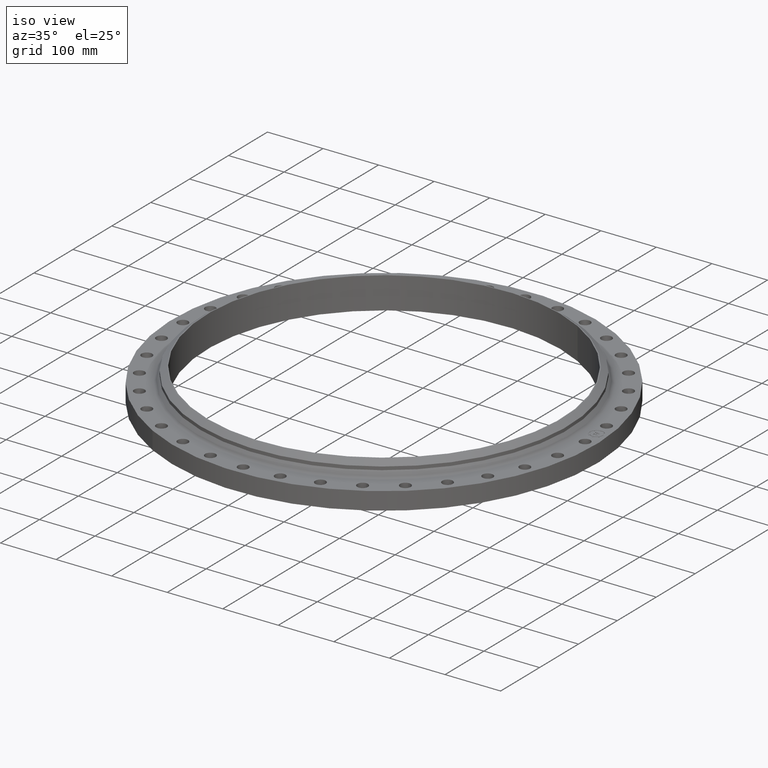
[diagram: clean part render]
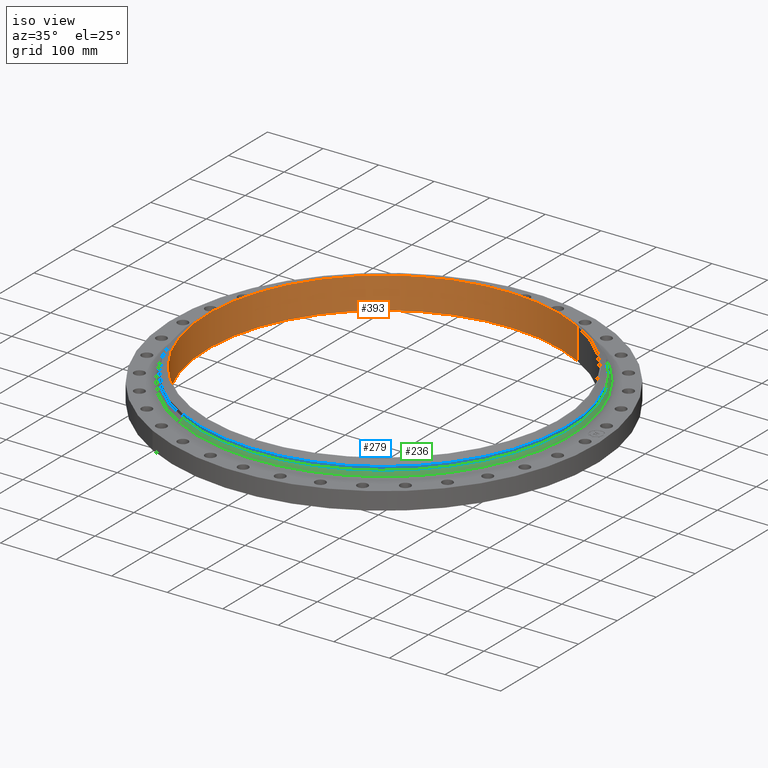
[diagram: same view with three faces highlighted in distinct colors, each labeled with its STEP entity id]
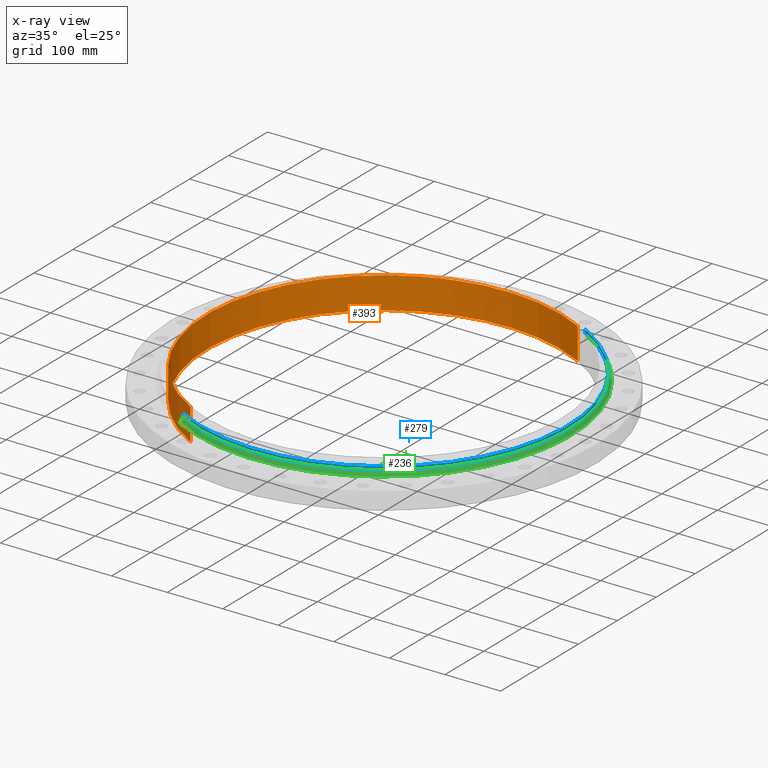
[diagram: x-ray of the same camera — body ghosted, the three highlighted faces saturated]
A machine part, iso view with three faces highlighted in distinct colors.
The next image is the same camera in x-ray (body ghosted, the three faces saturated) — at least one of them is partly hidden behind the body in this view.
Their STEP definitions:

[orange] entity #393 — the highlighted cylindrical surface (partial cylindrical patch) has radius 318.262 mm, axis along (0, 0, -1).
#346=AXIS2_PLACEMENT_3D('Circle Axis2P3D',#344,#345,$) ;
#366=AXIS2_PLACEMENT_3D('Cylinder Axis2P3D',#363,#364,#365) ;
#377=AXIS2_PLACEMENT_3D('Circle Axis2P3D',#375,#376,$) ;
#344=CARTESIAN_POINT('Axis2P3D Location',(-2.23792987641E-015,-5.59482469102E-016,2.25000000001)) ;
#348=CARTESIAN_POINT('Vertex',(-6.00720199873,-10.9961095005,2.25000000001)) ;
#350=CARTESIAN_POINT('Vertex',(6.00720199873,10.9961095005,2.25000000001)) ;
#363=CARTESIAN_POINT('Axis2P3D Location',(0.,0.,1.175)) ;
#368=CARTESIAN_POINT('Line Origine',(-6.00720199873,-10.9961095005,1.125)) ;
#372=CARTESIAN_POINT('Vertex',(-6.00720199873,-10.9961095005,-1.6224991604E-014)) ;
#375=CARTESIAN_POINT('Axis2P3D Location',(0.,0.,-1.6224991604E-014)) ;
#379=CARTESIAN_POINT('Vertex',(6.00720199873,10.9961095005,-1.6224991604E-014)) ;
#382=CARTESIAN_POINT('Line Origine',(6.00720199873,10.9961095005,1.125)) ;
#345=DIRECTION('Axis2P3D Direction',(0.,-0.,-0.0393700787402)) ;
#364=DIRECTION('Axis2P3D Direction',(0.,0.,-0.0393700787402)) ;
#365=DIRECTION('Axis2P3D XDirection',(0.0188750212049,0.0345504945626,0.)) ;
#369=DIRECTION('Vector Direction',(0.,0.,-0.0393700787402)) ;
#376=DIRECTION('Axis2P3D Direction',(0.,0.,-0.0393700787402)) ;
#383=DIRECTION('Vector Direction',(0.,0.,-0.0393700787402)) ;
#370=VECTOR('Line Direction',#369,0.0393700787402) ;
#384=VECTOR('Line Direction',#383,0.0393700787402) ;
#388=ORIENTED_EDGE('',*,*,#374,.T.) ;
#389=ORIENTED_EDGE('',*,*,#381,.T.) ;
#390=ORIENTED_EDGE('',*,*,#386,.F.) ;
#391=ORIENTED_EDGE('',*,*,#352,.F.) ;
#393=ADVANCED_FACE('PartBody',(#392),#367,.F.) ;
#347=CIRCLE('generated circle',#346,12.5300000001) ;
#378=CIRCLE('generated circle',#377,12.5300000001) ;
#367=CYLINDRICAL_SURFACE('generated cylinder',#366,12.5300000001) ;
#352=EDGE_CURVE('',#349,#351,#347,.T.) ;
#374=EDGE_CURVE('',#349,#373,#371,.T.) ;
#381=EDGE_CURVE('',#373,#380,#378,.T.) ;
#386=EDGE_CURVE('',#351,#380,#385,.T.) ;
#387=EDGE_LOOP('',(#388,#389,#390,#391)) ;
#392=FACE_OUTER_BOUND('',#387,.T.) ;
#371=LINE('Line',#368,#370) ;
#385=LINE('Line',#382,#384) ;
#349=VERTEX_POINT('',#348) ;
#351=VERTEX_POINT('',#350) ;
#373=VERTEX_POINT('',#372) ;
#380=VERTEX_POINT('',#379) ;

[blue] entity #279 — the highlighted cylindrical surface (partial cylindrical patch) has radius 330.962 mm, axis along (0, 0, -1).
#220=AXIS2_PLACEMENT_3D('Circle Axis2P3D',#218,#219,$) ;
#252=AXIS2_PLACEMENT_3D('Cylinder Axis2P3D',#249,#250,#251) ;
#270=AXIS2_PLACEMENT_3D('Circle Axis2P3D',#268,#269,$) ;
#215=CARTESIAN_POINT('Vertex',(6.24691476804,11.4349007815,1.67807397033)) ;
#218=CARTESIAN_POINT('Axis2P3D Location',(0.,0.,1.67807397033)) ;
#222=CARTESIAN_POINT('Vertex',(-6.24691476804,-11.4349007815,1.67807397033)) ;
#249=CARTESIAN_POINT('Axis2P3D Location',(0.,0.,1.175)) ;
#254=CARTESIAN_POINT('Line Origine',(-6.24691476804,-11.4349007815,1.79618420655)) ;
#258=CARTESIAN_POINT('Vertex',(-6.24691476804,-11.4349007815,1.91429444277)) ;
#261=CARTESIAN_POINT('Line Origine',(6.24691476804,11.4349007815,1.79618420655)) ;
#265=CARTESIAN_POINT('Vertex',(6.24691476804,11.4349007815,1.91429444277)) ;
#268=CARTESIAN_POINT('Axis2P3D Location',(0.,0.,1.91429444277)) ;
#219=DIRECTION('Axis2P3D Direction',(0.,0.,-0.0393700787402)) ;
#250=DIRECTION('Axis2P3D Direction',(0.,0.,-0.0393700787402)) ;
#251=DIRECTION('Axis2P3D XDirection',(-0.0188750212049,-0.0345504945626,0.)) ;
#255=DIRECTION('Vector Direction',(0.,0.,-0.0393700787402)) ;
#262=DIRECTION('Vector Direction',(0.,0.,-0.0393700787402)) ;
#269=DIRECTION('Axis2P3D Direction',(0.,0.,-0.0393700787402)) ;
#256=VECTOR('Line Direction',#255,0.0393700787402) ;
#263=VECTOR('Line Direction',#262,0.0393700787402) ;
#274=ORIENTED_EDGE('',*,*,#260,.F.) ;
#275=ORIENTED_EDGE('',*,*,#224,.F.) ;
#276=ORIENTED_EDGE('',*,*,#267,.T.) ;
#277=ORIENTED_EDGE('',*,*,#272,.T.) ;
#279=ADVANCED_FACE('PartBody',(#278),#253,.T.) ;
#221=CIRCLE('generated circle',#220,13.0300000001) ;
#271=CIRCLE('generated circle',#270,13.0300000001) ;
#253=CYLINDRICAL_SURFACE('generated cylinder',#252,13.0300000001) ;
#224=EDGE_CURVE('',#216,#223,#221,.T.) ;
#260=EDGE_CURVE('',#223,#259,#257,.F.) ;
#267=EDGE_CURVE('',#216,#266,#264,.F.) ;
#272=EDGE_CURVE('',#266,#259,#271,.T.) ;
#273=EDGE_LOOP('',(#274,#275,#276,#277)) ;
#278=FACE_OUTER_BOUND('',#273,.T.) ;
#257=LINE('Line',#254,#256) ;
#264=LINE('Line',#261,#263) ;
#216=VERTEX_POINT('',#215) ;
#223=VERTEX_POINT('',#222) ;
#259=VERTEX_POINT('',#258) ;
#266=VERTEX_POINT('',#265) ;

[green] entity #236 — the highlighted conical surface has half-angle 33.188 deg.
#172=AXIS2_PLACEMENT_3D('Circle Axis2P3D',#170,#171,$) ;
#209=AXIS2_PLACEMENT_3D('Cone Axis2P3D',#206,#207,#208) ;
#220=AXIS2_PLACEMENT_3D('Circle Axis2P3D',#218,#219,$) ;
#167=CARTESIAN_POINT('Vertex',(6.34567087461,11.615672622,1.36315154733)) ;
#170=CARTESIAN_POINT('Axis2P3D Location',(0.,0.,1.36315154733)) ;
#174=CARTESIAN_POINT('Vertex',(-6.34567087461,-11.615672622,1.36315154733)) ;
#206=CARTESIAN_POINT('Axis2P3D Location',(0.,0.,1.67807397033)) ;
#211=CARTESIAN_POINT('Line Origine',(6.29629282132,11.5252867017,1.52061275883)) ;
#215=CARTESIAN_POINT('Vertex',(6.24691476804,11.4349007815,1.67807397033)) ;
#218=CARTESIAN_POINT('Axis2P3D Location',(0.,0.,1.67807397033)) ;
#222=CARTESIAN_POINT('Vertex',(-6.24691476804,-11.4349007815,1.67807397033)) ;
#225=CARTESIAN_POINT('Line Origine',(-6.29629282132,-11.5252867017,1.52061275883)) ;
#171=DIRECTION('Axis2P3D Direction',(0.,0.,-0.0393700787402)) ;
#207=DIRECTION('Axis2P3D Direction',(0.,0.,-0.0393700787402)) ;
#208=DIRECTION('Axis2P3D XDirection',(-0.0188750212049,-0.0345504945626,0.)) ;
#212=DIRECTION('Vector Direction',(0.0103320697847,0.0189127268809,-0.0329478405347)) ;
#219=DIRECTION('Axis2P3D Direction',(0.,0.,-0.0393700787402)) ;
#226=DIRECTION('Vector Direction',(-0.0103320697847,-0.0189127268809,-0.0329478405347)) ;
#213=VECTOR('Line Direction',#212,0.0393700787402) ;
#227=VECTOR('Line Direction',#226,0.0393700787402) ;
#231=ORIENTED_EDGE('',*,*,#176,.F.) ;
#232=ORIENTED_EDGE('',*,*,#217,.T.) ;
#233=ORIENTED_EDGE('',*,*,#224,.T.) ;
#234=ORIENTED_EDGE('',*,*,#229,.F.) ;
#236=ADVANCED_FACE('PartBody',(#235),#210,.T.) ;
#173=CIRCLE('generated circle',#172,13.2359884146) ;
#221=CIRCLE('generated circle',#220,13.0300000001) ;
#210=CONICAL_SURFACE('Cone',#209,13.0300000001,0.579246863313) ;
#176=EDGE_CURVE('',#168,#175,#173,.T.) ;
#217=EDGE_CURVE('',#168,#216,#214,.F.) ;
#224=EDGE_CURVE('',#216,#223,#221,.T.) ;
#229=EDGE_CURVE('',#175,#223,#228,.F.) ;
#230=EDGE_LOOP('',(#231,#232,#233,#234)) ;
#235=FACE_OUTER_BOUND('',#230,.T.) ;
#214=LINE('Line',#211,#213) ;
#228=LINE('Line',#225,#227) ;
#168=VERTEX_POINT('',#167) ;
#175=VERTEX_POINT('',#174) ;
#216=VERTEX_POINT('',#215) ;
#223=VERTEX_POINT('',#222) ;